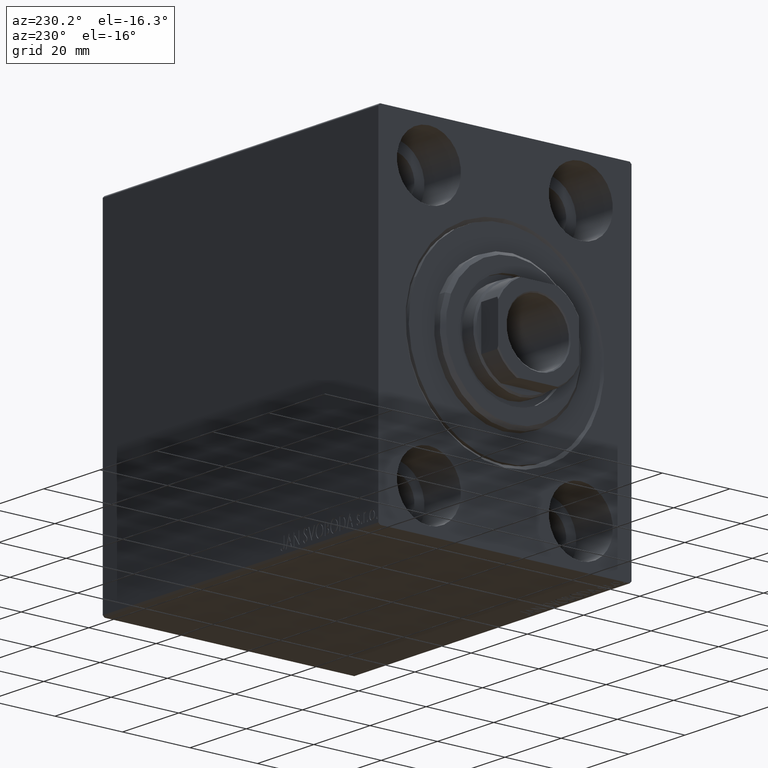
[diagram: clean part render]
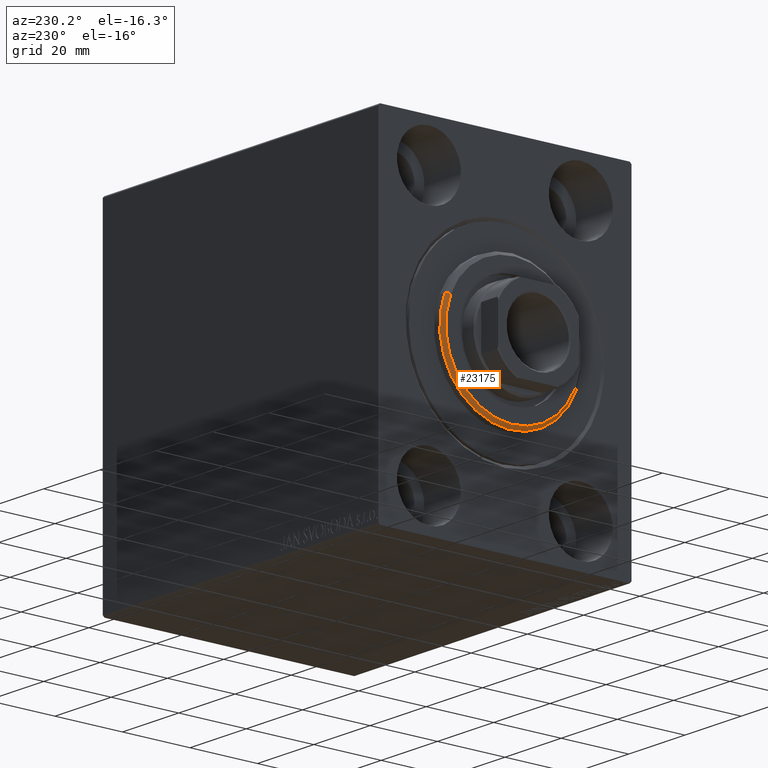
[diagram: same view with one face highlighted and labeled with its STEP entity id]
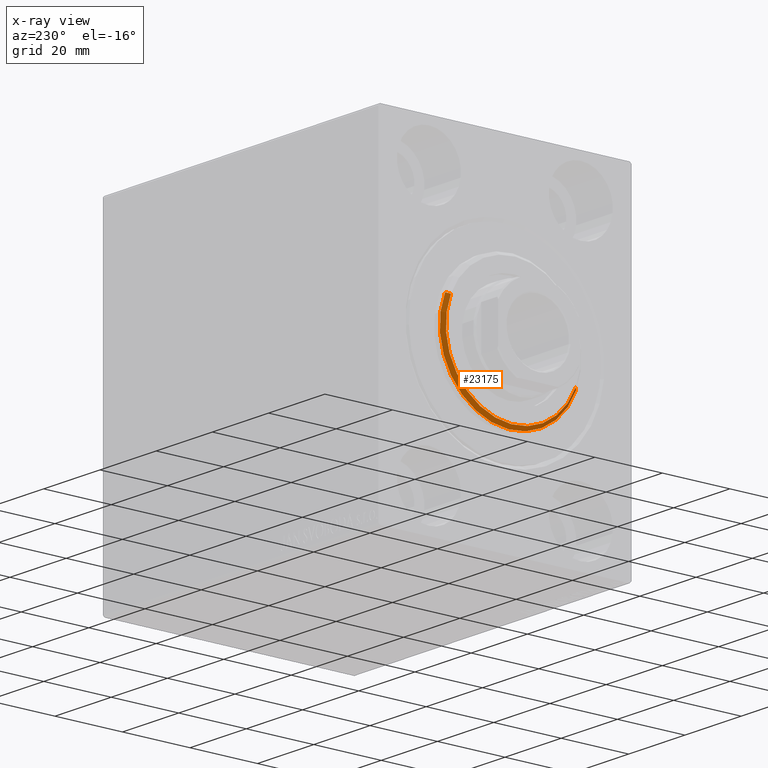
[diagram: x-ray of the same camera — body ghosted, the highlighted face saturated]
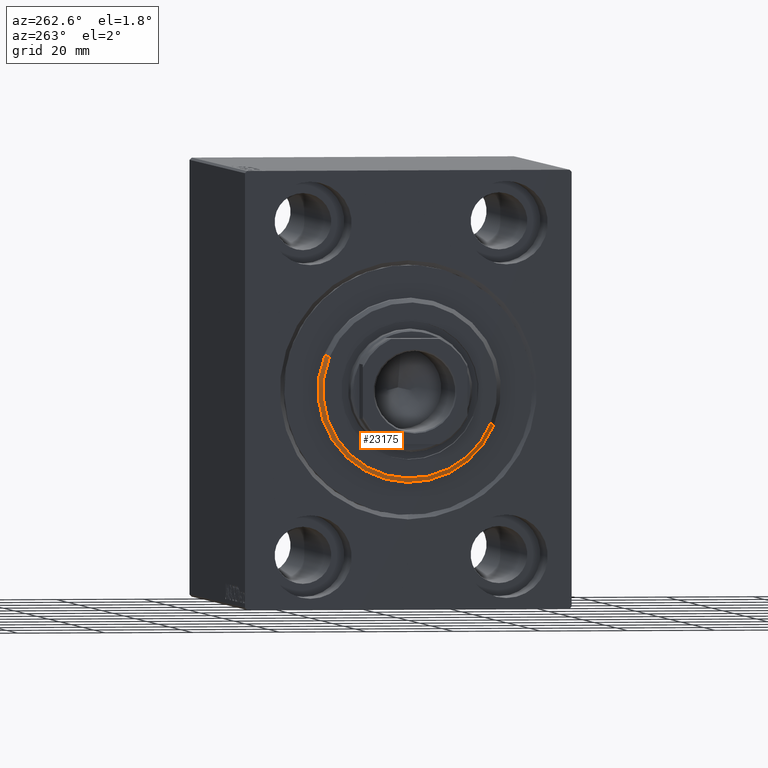
[diagram: same view with one face highlighted and labeled with its STEP entity id]
A machine part, auxiliary view. The second image highlights one B-rep face of the part: STEP entity #23175.
The next image is the same camera in x-ray: the body ghosted, the highlighted face saturated — about 0% of this face is hidden behind the body in this view.
A second angle (auxiliary view) of the same face is appended — the face is thin or edge-on in the first view.
In plain terms, the highlighted conical surface has half-angle 45 deg.
Its self-contained STEP definition (entity closure, byte-faithful):
#382 = EDGE_LOOP ( 'NONE', ( #26943, #27298, #21547, #16126 ) ) ;
#860 = CARTESIAN_POINT ( 'NONE',  ( 1.999999999999995781, 2.571758278209441661E-15, -21.00000000000000000 ) ) ;
#945 = CARTESIAN_POINT ( 'NONE',  ( 3.000000000000000000, 2.449293598294706119E-15, -19.99999999999999645 ) ) ;
#1073 = DIRECTION ( 'NONE',  ( -1.000000000000000000, 0.000000000000000000, 0.000000000000000000 ) ) ;
#1366 = LINE ( 'NONE', #945, #41494 ) ;
#3890 = EDGE_CURVE ( 'NONE', #30505, #18484, #1366, .T. ) ;
#4762 = CARTESIAN_POINT ( 'NONE',  ( 1.999999999999995781, 0.000000000000000000, 21.00000000000000000 ) ) ;
#5071 = EDGE_CURVE ( 'NONE', #23644, #18484, #33758, .T. ) ;
#6189 = CARTESIAN_POINT ( 'NONE',  ( 3.000000000000000000, 0.000000000000000000, 19.99999999999999645 ) ) ;
#7693 = FACE_OUTER_BOUND ( 'NONE', #382, .T. ) ;
#8491 = VERTEX_POINT ( 'NONE', #6189 ) ;
#10042 = DIRECTION ( 'NONE',  ( 1.000000000000000000, -0.000000000000000000, 0.000000000000000000 ) ) ;
#11655 = EDGE_CURVE ( 'NONE', #8491, #23644, #11966, .T. ) ;
#11966 = LINE ( 'NONE', #22118, #42693 ) ;
#12662 = AXIS2_PLACEMENT_3D ( 'NONE', #21156, #1073, #28214 ) ;
#13265 = DIRECTION ( 'NONE',  ( 0.000000000000000000, 0.000000000000000000, -1.000000000000000000 ) ) ;
#13376 = CIRCLE ( 'NONE', #24652, 19.99999999999999645 ) ;
#14386 = CARTESIAN_POINT ( 'NONE',  ( 3.000000000000000000, 2.510525938252074087E-15, -19.99999999999999645 ) ) ;
#16126 = ORIENTED_EDGE ( 'NONE', *, *, #11655, .F. ) ;
#18484 = VERTEX_POINT ( 'NONE', #860 ) ;
#21156 = CARTESIAN_POINT ( 'NONE',  ( 3.000000000000000000, 0.000000000000000000, 0.000000000000000000 ) ) ;
#21547 = ORIENTED_EDGE ( 'NONE', *, *, #5071, .F. ) ;
#22118 = CARTESIAN_POINT ( 'NONE',  ( 3.000000000000000000, 0.000000000000000000, 19.99999999999999645 ) ) ;
#23175 = ADVANCED_FACE ( 'NONE', ( #7693 ), #31677, .T. ) ;
#23426 = DIRECTION ( 'NONE',  ( -1.000000000000000000, 0.000000000000000000, 0.000000000000000000 ) ) ;
#23644 = VERTEX_POINT ( 'NONE', #4762 ) ;
#24652 = AXIS2_PLACEMENT_3D ( 'NONE', #40283, #10042, #29904 ) ;
#26943 = ORIENTED_EDGE ( 'NONE', *, *, #27881, .F. ) ;
#27298 = ORIENTED_EDGE ( 'NONE', *, *, #3890, .T. ) ;
#27881 = EDGE_CURVE ( 'NONE', #30505, #8491, #13376, .T. ) ;
#28214 = DIRECTION ( 'NONE',  ( 0.000000000000000000, 0.000000000000000000, 1.000000000000000000 ) ) ;
#29904 = DIRECTION ( 'NONE',  ( 0.000000000000000000, 0.000000000000000000, -1.000000000000000000 ) ) ;
#30505 = VERTEX_POINT ( 'NONE', #14386 ) ;
#31677 = CONICAL_SURFACE ( 'NONE', #12662, 19.99999999999999645, 0.7853981633974482790 ) ;
#33758 = CIRCLE ( 'NONE', #42225, 21.00000000000000000 ) ;
#38901 = DIRECTION ( 'NONE',  ( -0.7071067811865474617, 0.000000000000000000, 0.7071067811865474617 ) ) ;
#40283 = CARTESIAN_POINT ( 'NONE',  ( 3.000000000000000000, 0.000000000000000000, 0.000000000000000000 ) ) ;
#41077 = CARTESIAN_POINT ( 'NONE',  ( 1.999999999999995781, 0.000000000000000000, 0.000000000000000000 ) ) ;
#41494 = VECTOR ( 'NONE', #41764, 1000.000000000000114 ) ;
#41764 = DIRECTION ( 'NONE',  ( -0.7071067811865474617, 8.659560562354932858E-17, -0.7071067811865474617 ) ) ;
#42225 = AXIS2_PLACEMENT_3D ( 'NONE', #41077, #23426, #13265 ) ;
#42693 = VECTOR ( 'NONE', #38901, 1000.000000000000114 ) ;